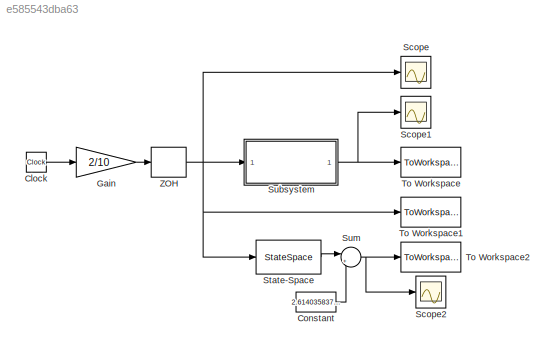
MODEL slx_e585543dba63
KIND model
CONFIG AbsTol = auto
CONFIG EnableMultiTasking = off
CONFIG FixedStep = 1e-3
CONFIG MaxStep = auto
CONFIG MinStep = auto
CONFIG RelTol = 1e-3
CONFIG SampleTimeConstraint = Unconstrained
CONFIG Solver = ode4
CONFIG SolverName = ode4
CONFIG StartTime = 0
CONFIG StopTime = 10000
BLOCK [Clock] Clock
BLOCK [Constant] Constant
  Value = 2.614035837813944
BLOCK [Gain] Gain
  Gain = 2/10
  OutDataTypeStr = Inherit: Inherit via internal rule
  ParamDataTypeStr = Inherit: Inherit via internal rule
  SaturateOnIntegerOverflow = off
BLOCK [Scope] Scope
  Floating = off
  NumInputPorts = 1
  Ports = [1]
  ScopeSpecificationString = Simulink.scopes.TimeScopeBlockCfg('CurrentConfiguration', extmgr.ConfigurationSet(extmgr.Configuration('Core','General UI',true),extmgr.Configuration('Core','Source UI',true),extmgr.Configuration('Sources','WiredSimulink',true),extmgr.Configuration('Visuals','Time Domain',true,'SerializedDisplays',{struct('MinYLimReal','-250.00000','MaxYLimReal','2250.00000','YLabelReal','','MinYLimMag',' 0.00000'...<+1367ch>
BLOCK [Scope] Scope1
  Floating = off
  NumInputPorts = 1
  Ports = [1]
  ScopeSpecificationString = Simulink.scopes.TimeScopeBlockCfg('CurrentConfiguration', extmgr.ConfigurationSet(extmgr.Configuration('Core','General UI',true),extmgr.Configuration('Core','Source UI',true),extmgr.Configuration('Sources','WiredSimulink',true,'DataLoggingVariableName','ScopeData1'),extmgr.Configuration('Visuals','Time Domain',true,'SerializedDisplays',{struct('MinYLimReal','1.38997','MaxYLimReal','13.63063','YLab...<+1414ch>
BLOCK [Scope] Scope2
  Floating = off
  NumInputPorts = 1
  Ports = [1]
  ScopeSpecificationString = Simulink.scopes.TimeScopeBlockCfg('CurrentConfiguration', extmgr.ConfigurationSet(extmgr.Configuration('Core','General UI',true),extmgr.Configuration('Core','Source UI',true),extmgr.Configuration('Sources','WiredSimulink',true,'DataLoggingVariableName','ScopeData1'),extmgr.Configuration('Visuals','Time Domain',true,'SerializedDisplays',{struct('MinYLimReal','1.9033','MaxYLimReal','9.01067','YLabel...<+1400ch>
BLOCK [StateSpace] State-Space
  A = [0 -1.00000000000097 -1.00000000000097;\n1.00000000000321 0.200000000002409 0;\n2.61403583783170 0 -5.17717972249146]
  B = [0; 0;\n0.0133333333707242]
  C = [0 0 1]
  D = 0
  InitialCondition = [0 0 0]
  Ports = [1, 1]
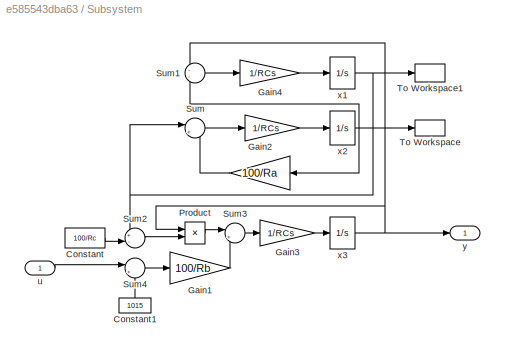
BLOCK [SubSystem] Subsystem
  Ports = [1, 1]
  RequestExecContextInheritance = off
BLOCK [Gain] Subsystem/ 
  Gain = 1/RCs
  OutDataTypeStr = Inherit: Inherit via internal rule
  ParamDataTypeStr = Inherit: Inherit via internal rule
  SaturateOnIntegerOverflow = off
BLOCK [Constant] Subsystem/Constant
  Value = 100/Rc
BLOCK [Constant] Subsystem/Constant1
  Value = 1015
BLOCK [Gain] Subsystem/Gain1
  Gain = 100/Rb
  OutDataTypeStr = Inherit: Inherit via internal rule
  ParamDataTypeStr = Inherit: Inherit via internal rule
  SaturateOnIntegerOverflow = off
BLOCK [Gain] Subsystem/Gain2
  Gain = 100/Ra
  OutDataTypeStr = Inherit: Inherit via internal rule
  ParamDataTypeStr = Inherit: Inherit via internal rule
  SaturateOnIntegerOverflow = off
BLOCK [Gain] Subsystem/Gain3
  Gain = 1/RCs
  OutDataTypeStr = Inherit: Inherit via internal rule
  ParamDataTypeStr = Inherit: Inherit via internal rule
  SaturateOnIntegerOverflow = off
BLOCK [Gain] Subsystem/Gain4
  Gain = 1/RCs
  OutDataTypeStr = Inherit: Inherit via internal rule
  ParamDataTypeStr = Inherit: Inherit via internal rule
  SaturateOnIntegerOverflow = off
BLOCK [Product] Subsystem/Product
  InputSameDT = off
  OutDataTypeStr = Inherit: Inherit via internal rule
  Ports = [2, 1]
  RndMeth = Floor
  SaturateOnIntegerOverflow = off
BLOCK [Sum] Subsystem/Sum
  IconShape = round
  InputSameDT = off
  Inputs = |++
  OutDataTypeStr = Inherit: Inherit via internal rule
  Ports = [2, 1]
  SaturateOnIntegerOverflow = off
BLOCK [Sum] Subsystem/Sum1
  IconShape = round
  InputSameDT = off
  Inputs = --
  OutDataTypeStr = Inherit: Inherit via internal rule
  Ports = [2, 1]
  SaturateOnIntegerOverflow = off
BLOCK [Sum] Subsystem/Sum2
  IconShape = round
  InputSameDT = off
  Inputs = +-|
  OutDataTypeStr = Inherit: Inherit via internal rule
  Ports = [2, 1]
  SaturateOnIntegerOverflow = off
BLOCK [Sum] Subsystem/Sum3
  IconShape = round
  InputSameDT = off
  Inputs = |++
  OutDataTypeStr = Inherit: Inherit via internal rule
  Ports = [2, 1]
  SaturateOnIntegerOverflow = off
BLOCK [Sum] Subsystem/Sum4
  IconShape = round
  InputSameDT = off
  Inputs = |++
  OutDataTypeStr = Inherit: Inherit via internal rule
  Ports = [2, 1]
  SaturateOnIntegerOverflow = off
BLOCK [ToWorkspace] Subsystem/To Workspace
  FixptAsFi = on
  MaxDataPoints = inf
  Ports = [1]
  SampleTime = -1
  VariableName = x2
BLOCK [ToWorkspace] Subsystem/To Workspace1
  FixptAsFi = on
  MaxDataPoints = inf
  Ports = [1]
  SampleTime = -1
  VariableName = x1
BLOCK [Inport] Subsystem/u
  IconDisplay = Port number
BLOCK [Integrator] Subsystem/x1
  InitialCondition = x10
  Ports = [1, 1]
BLOCK [Integrator] Subsystem/x2
  InitialCondition = x20
  Ports = [1, 1]
BLOCK [Integrator] Subsystem/x3 
  InitialCondition = y0
  Ports = [1, 1]
BLOCK [Outport] Subsystem/y 
  IconDisplay = Port number
BLOCK [Sum] Sum
  IconShape = round
  InputSameDT = off
  Inputs = |++
  OutDataTypeStr = Inherit: Inherit via internal rule
  Ports = [2, 1]
  SaturateOnIntegerOverflow = off
BLOCK [ToWorkspace] To Workspace
  FixptAsFi = on
  MaxDataPoints = inf
  Ports = [1]
  SampleTime = -1
  VariableName = y
BLOCK [ToWorkspace] To Workspace1
  FixptAsFi = on
  MaxDataPoints = inf
  Ports = [1]
  SampleTime = -1
  VariableName = u
BLOCK [ToWorkspace] To Workspace2
  FixptAsFi = on
  MaxDataPoints = inf
  Ports = [1]
  SampleTime = -1
  VariableName = yLinApprox
BLOCK [ZeroOrderHold] ZOH 
  SampleTime = 100
LINE Clock:1 -> Gain:1
LINE Constant:1 -> Sum:2
LINE Gain:1 -> ZOH :1
LINE State-Space:1 -> Sum:1
LINE Subsystem/ :1 -> Subsystem/x2:1
LINE Subsystem/Constant1:1 -> Subsystem/Sum4:2
LINE Subsystem/Constant:1 -> Subsystem/Sum2:2
LINE Subsystem/Gain1:1 -> Subsystem/Sum3:2
LINE Subsystem/Gain2:1 -> Subsystem/Sum:2
LINE Subsystem/Gain3:1 -> Subsystem/x3 :1
LINE Subsystem/Gain4:1 -> Subsystem/x1:1
LINE Subsystem/Product:1 -> Subsystem/Sum3:1
LINE Subsystem/Sum1:1 -> Subsystem/Gain4:1
LINE Subsystem/Sum2:1 -> Subsystem/Product:2
LINE Subsystem/Sum3:1 -> Subsystem/Gain3:1
LINE Subsystem/Sum4:1 -> Subsystem/Gain1:1
LINE Subsystem/Sum:1 -> Subsystem/ :1
LINE Subsystem/u:1 -> Subsystem/Sum4:1
NET Subsystem/x1:1 -> Subsystem/Sum2:1, Subsystem/Sum:1, Subsystem/To Workspace1:1
NET Subsystem/x2:1 -> Subsystem/Gain2:1, Subsystem/Sum1:2, Subsystem/To Workspace:1
NET Subsystem/x3 :1 -> Subsystem/Product:1, Subsystem/Sum1:1, Subsystem/y :1
NET Subsystem:1 -> Scope1:1, To Workspace:1
NET Sum:1 -> Scope2:1, To Workspace2:1
NET ZOH :1 -> Scope:1, State-Space:1, Subsystem:1, To Workspace1:1
note: NET lines group one-source signal fan-out (src -> all destinations, sorted); 1:1 wires keep LINE
